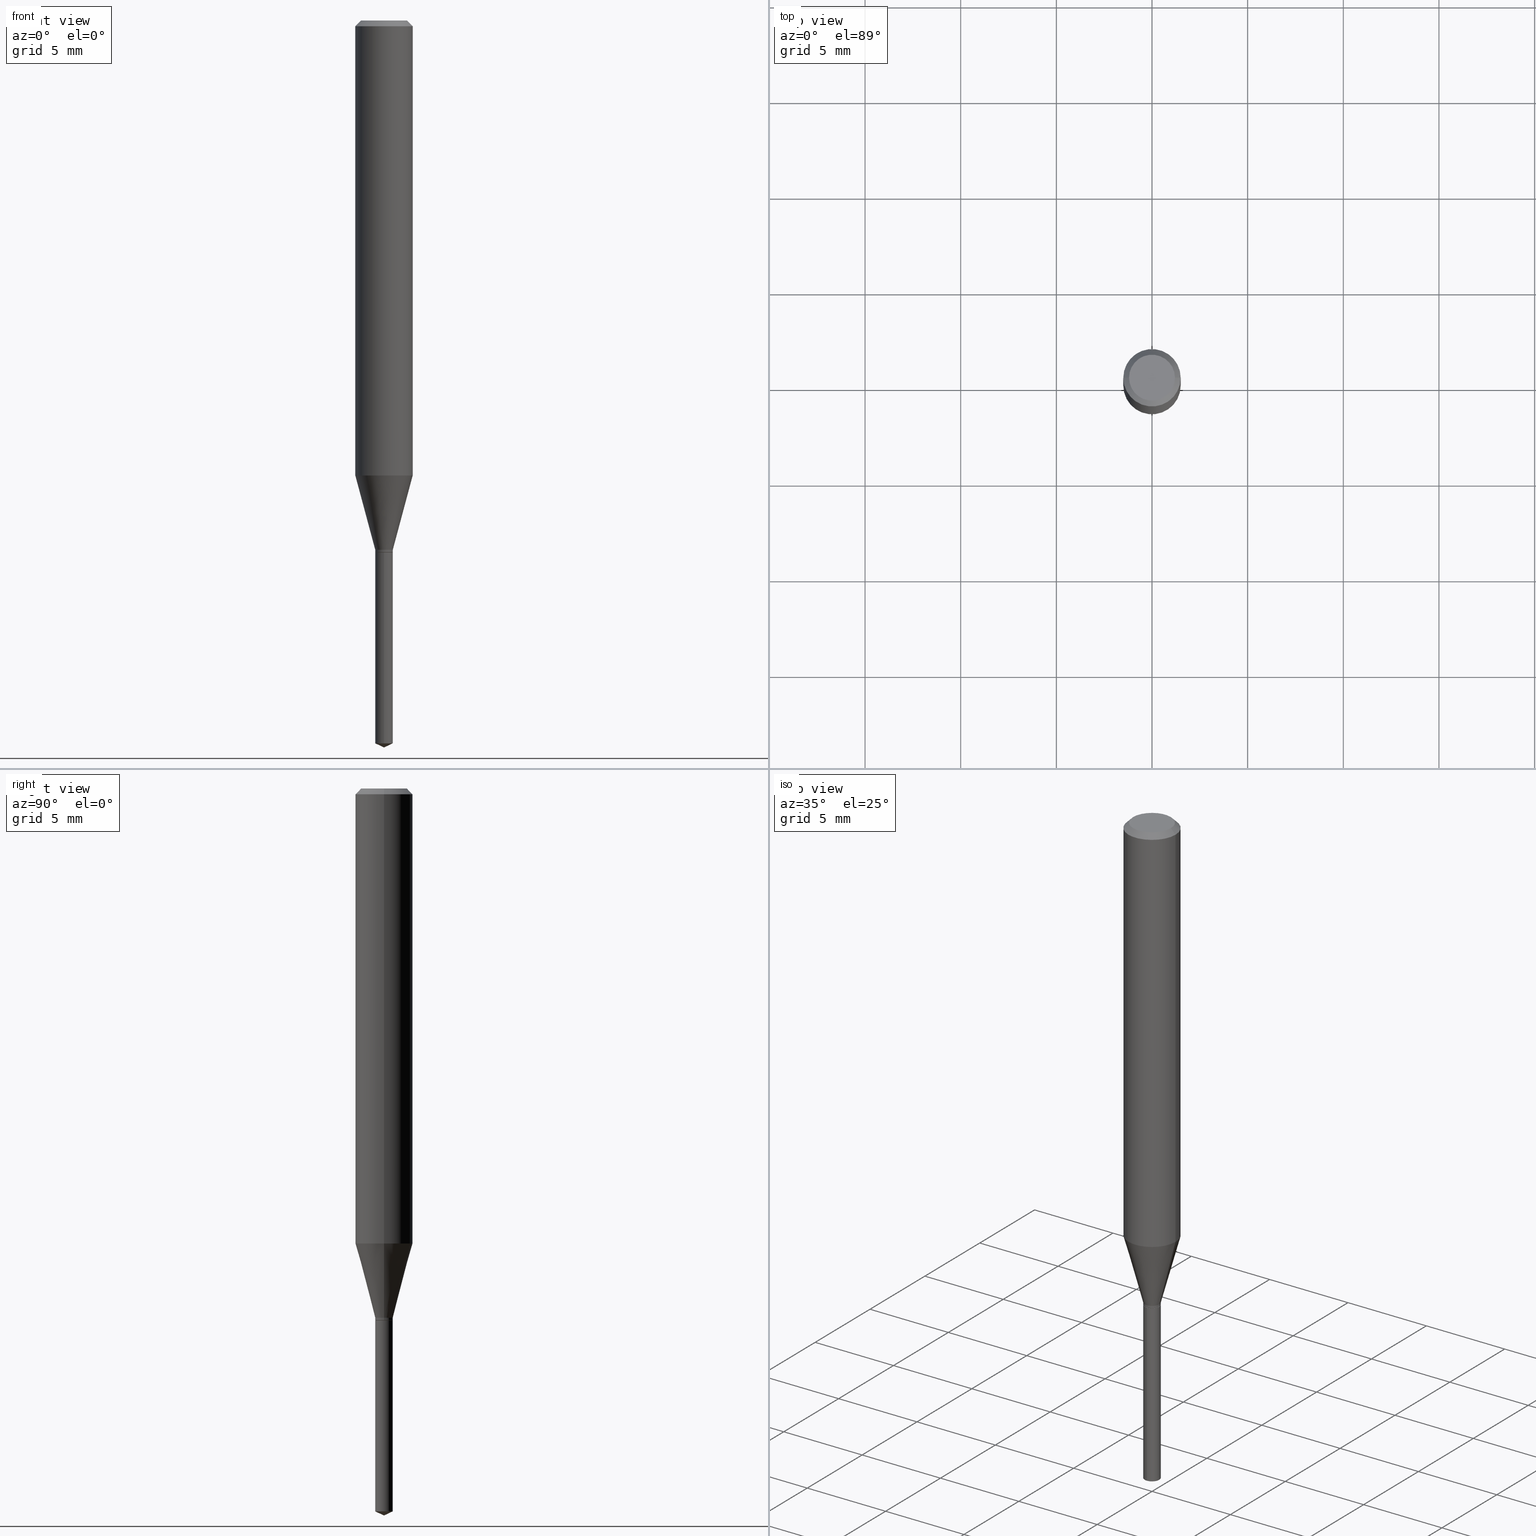
[diagram: canonical four-view strip — front | top / right | iso, engineering-drawing reading convention]
A machine part, canonical four-view strip (front | top / right | iso — engineering-drawing reading convention). The complete STEP part file that produces these views, byte-faithful:
ISO-10303-21;
HEADER;
FILE_DESCRIPTION (( 'STEP AP203' ),
    '1' );
FILE_NAME ('07815.STEP',
    '2024-04-24T03:39:00',
    ( '' ),
    ( '' ),
    'SwSTEP 2.0',
    'SolidWorks 2023',
    '' );
FILE_SCHEMA (( 'CONFIG_CONTROL_DESIGN' ));
ENDSEC;

DATA;
#1 = CARTESIAN_POINT ( 'NONE',  ( -0.05904999999999999832, 3.711095515056362547E-16, -0.01181000000000006871 ) ) ;
#2 = PERSON_AND_ORGANIZATION_ROLE ( 'design_owner' ) ;
#3 = CARTESIAN_POINT ( 'NONE',  ( 3.638026265593577860E-29, -5.194135746875548757E-15, -1.487659831387394549 ) ) ;
#4 = VERTEX_POINT ( 'NONE', #336 ) ;
#5 = EDGE_CURVE ( 'NONE', #411, #248, #164, .T. ) ;
#6 = DIRECTION ( 'NONE',  ( -2.445468806185136877E-29, 3.491481338843145188E-15, 1.000000000000000000 ) ) ;
#7 = ORIENTED_EDGE ( 'NONE', *, *, #348, .T. ) ;
#8 = DIRECTION ( 'NONE',  ( 1.000000000000000000, -6.982962677686260400E-15, 0.000000000000000000 ) ) ;
#9 = AXIS2_PLACEMENT_3D ( 'NONE', #363, #371, #310 ) ;
#10 = FACE_OUTER_BOUND ( 'NONE', #331, .T. ) ;
#11 = AXIS2_PLACEMENT_3D ( 'NONE', #195, #58, #12 ) ;
#12 = DIRECTION ( 'NONE',  ( 1.000000000000000000, -6.982962677686262766E-15, 0.000000000000000000 ) ) ;
#13 = APPROVAL_STATUS ( 'not_yet_approved' ) ;
#14 = CARTESIAN_POINT ( 'NONE',  ( 0.01810000000000000150, -3.928963950600190549E-15, -1.089099999999999957 ) ) ;
#15 = EDGE_CURVE ( 'NONE', #471, #475, #454, .T. ) ;
#16 = EDGE_LOOP ( 'NONE', ( #146, #114, #415, #186 ) ) ;
#17 = EDGE_CURVE ( 'NONE', #411, #427, #122, .T. ) ;
#18 = CLOSED_SHELL ( 'NONE', ( #126, #354, #343, #442, #289, #473, #72, #237, #296, #46, #91, #135 ) ) ;
#19 = PRODUCT_DEFINITION_FORMATION_WITH_SPECIFIED_SOURCE ( 'ANY', '', #76, .NOT_KNOWN. ) ;
#20 = EDGE_LOOP ( 'NONE', ( #378, #226, #169, #487 ) ) ;
#21 = LINE ( 'NONE', #191, #465 ) ;
#22 = DIRECTION ( 'NONE',  ( -2.445468806185136597E-29, 3.491481338843145583E-15, 1.000000000000000000 ) ) ;
#23 = FACE_OUTER_BOUND ( 'NONE', #205, .T. ) ;
#24 = FACE_OUTER_BOUND ( 'NONE', #375, .T. ) ;
#25 = VECTOR ( 'NONE', #192, 39.37007874015748854 ) ;
#26 = AXIS2_PLACEMENT_3D ( 'NONE', #85, #284, #365 ) ;
#27 = CARTESIAN_POINT ( 'NONE',  ( -1.263916244660946470E-16, -0.01810000000000382483, -1.094499999999999806 ) ) ;
#28 = FACE_OUTER_BOUND ( 'NONE', #406, .T. ) ;
#29 = LINE ( 'NONE', #321, #217 ) ;
#30 = DIRECTION ( 'NONE',  ( -6.982962677686267499E-15, -1.000000000000000000, 3.520397390770428626E-15 ) ) ;
#31 = EDGE_CURVE ( 'NONE', #82, #45, #90, .T. ) ;
#32 = DIRECTION ( 'NONE',  ( 1.000000000000000000, -6.982962677686266711E-15, 0.000000000000000000 ) ) ;
#33 = DIRECTION ( 'NONE',  ( 1.000000000000000000, -6.982962677686266711E-15, 4.876176775795935793E-29 ) ) ;
#34 = DIRECTION ( 'NONE',  ( 1.000000000000000000, -6.982962677686260400E-15, 0.000000000000000000 ) ) ;
#35 = VECTOR ( 'NONE', #279, 39.37007874015748143 ) ;
#36 = CC_DESIGN_DATE_AND_TIME_ASSIGNMENT ( #80, #373, ( #161 ) ) ;
#37 = DIRECTION ( 'NONE',  ( 1.000000000000000000, -6.982962677686265922E-15, 4.876176775795935793E-29 ) ) ;
#38 = DIRECTION ( 'NONE',  ( -2.445468806185136597E-29, 3.491481338843145583E-15, 1.000000000000000000 ) ) ;
#39 = DIRECTION ( 'NONE',  ( 1.000000000000000000, 0.000000000000000000, 0.000000000000000000 ) ) ;
#40 = VERTEX_POINT ( 'NONE', #342 ) ;
#41 = EDGE_CURVE ( 'NONE', #82, #462, #49, .T. ) ;
#42 = PERSON_AND_ORGANIZATION ( #278, #446 ) ;
#43 = VERTEX_POINT ( 'NONE', #387 ) ;
#44 = CARTESIAN_POINT ( 'NONE',  ( 0.000000000000000000, 0.000000000000000000, 0.000000000000000000 ) ) ;
#45 = VERTEX_POINT ( 'NONE', #53 ) ;
#46 = ADVANCED_FACE ( 'NONE', ( #10 ), #426, .F. ) ;
#47 = ORIENTED_EDGE ( 'NONE', *, *, #400, .T. ) ;
#48 = ORIENTED_EDGE ( 'NONE', *, *, #198, .T. ) ;
#49 = CIRCLE ( 'NONE', #87, 0.04724000000000000421 ) ;
#50 = AXIS2_PLACEMENT_3D ( 'NONE', #345, #338, #390 ) ;
#51 = ORIENTED_EDGE ( 'NONE', *, *, #225, .F. ) ;
#52 = APPROVAL_ROLE ( '' ) ;
#53 = CARTESIAN_POINT ( 'NONE',  ( 0.05904999999999999832, -4.535783407291118600E-16, -0.01181000000000006871 ) ) ;
#54 = LINE ( 'NONE', #218, #25 ) ;
#55 = ADVANCED_FACE ( 'NONE', ( #364 ), #239, .T. ) ;
#56 = CONICAL_SURFACE ( 'NONE', #165, 0.05904999999999999832, 0.7853981633974452814 ) ;
#57 = ORIENTED_EDGE ( 'NONE', *, *, #302, .F. ) ;
#58 = DIRECTION ( 'NONE',  ( -2.445468806185136597E-29, 3.491481338843145583E-15, 1.000000000000000000 ) ) ;
#59 = DIRECTION ( 'NONE',  ( 1.000000000000000000, -6.982962677686266711E-15, 4.876176775795935793E-29 ) ) ;
#60 = AXIS2_PLACEMENT_3D ( 'NONE', #320, #461, #34 ) ;
#61 = SECURITY_CLASSIFICATION ( '', '', #136 ) ;
#62 = CYLINDRICAL_SURFACE ( 'NONE', #232, 0.01810000000000000150 ) ;
#63 = ADVANCED_FACE ( 'NONE', ( #408 ), #488, .T. ) ;
#64 = APPROVAL_ROLE ( '' ) ;
#65 = CARTESIAN_POINT ( 'NONE',  ( 0.000000000000000000, 0.000000000000000000, 0.000000000000000000 ) ) ;
#66 = EDGE_CURVE ( 'NONE', #254, #451, #227, .T. ) ;
#67 = LINE ( 'NONE', #173, #423 ) ;
#68 = AXIS2_PLACEMENT_3D ( 'NONE', #399, #166, #269 ) ;
#69 = CARTESIAN_POINT ( 'NONE',  ( -9.261968845786000133E-28, 1.322362114038720264E-13, 37.87397874015748300 ) ) ;
#70 = EDGE_CURVE ( 'NONE', #43, #4, #379, .T. ) ;
#71 = CC_DESIGN_DATE_AND_TIME_ASSIGNMENT ( #440, #306, ( #61 ) ) ;
#72 = ADVANCED_FACE ( 'NONE', ( #276 ), #236, .T. ) ;
#73 = DIRECTION ( 'NONE',  ( -2.438088387897960049E-29, 3.491481338843145188E-15, 1.000000000000000000 ) ) ;
#74 = CARTESIAN_POINT ( 'NONE',  ( 0.000000000000000000, 0.000000000000000000, 0.000000000000000000 ) ) ;
#75 = DIRECTION ( 'NONE',  ( -6.982962677686265922E-15, -1.000000000000000000, 0.000000000000000000 ) ) ;
#76 = PRODUCT ( '07815', '07815', '', ( #86 ) ) ;
#77 = LOCAL_TIME ( 23, 39, 0.000000000000000000, #358 ) ;
#78 = DIRECTION ( 'NONE',  ( -2.445468806185136597E-29, 3.491481338843145583E-15, 1.000000000000000000 ) ) ;
#79 = CARTESIAN_POINT ( 'NONE',  ( 2.663360076816232005E-29, -3.802572326134069746E-15, -1.089099999999999957 ) ) ;
#80 = DATE_AND_TIME ( #325, #439 ) ;
#81 = ORIENTED_EDGE ( 'NONE', *, *, #453, .F. ) ;
#82 = VERTEX_POINT ( 'NONE', #243 ) ;
#83 = APPROVAL ( #140, 'UNSPECIFIED' ) ;
#84 = ORIENTED_EDGE ( 'NONE', *, *, #208, .T. ) ;
#85 = CARTESIAN_POINT ( 'NONE',  ( -9.261968845786000133E-28, 1.322362114038720264E-13, 37.87397874015748300 ) ) ;
#86 = MECHANICAL_CONTEXT ( 'NONE', #355, 'mechanical' ) ;
#87 = AXIS2_PLACEMENT_3D ( 'NONE', #159, #301, #478 ) ;
#88 = AXIS2_PLACEMENT_3D ( 'NONE', #181, #145, #455 ) ;
#89 = CARTESIAN_POINT ( 'NONE',  ( 2.675342873966538993E-29, -3.819680584694400481E-15, -1.093999999999999861 ) ) ;
#90 = LINE ( 'NONE', #367, #265 ) ;
#91 = ADVANCED_FACE ( 'NONE', ( #368 ), #403, .F. ) ;
#92 = APPROVAL_DATE_TIME ( #201, #167 ) ;
#93 = DIRECTION ( 'NONE',  ( -6.982962677686265922E-15, -1.000000000000000000, 0.000000000000000000 ) ) ;
#94 = CIRCLE ( 'NONE', #50, 0.05904999999999999832 ) ;
#95 = ORIENTED_EDGE ( 'NONE', *, *, #291, .F. ) ;
#96 = DIRECTION ( 'NONE',  ( -2.445468806185136597E-29, 3.491481338843145583E-15, 1.000000000000000000 ) ) ;
#97 = FACE_OUTER_BOUND ( 'NONE', #123, .T. ) ;
#98 = ORIENTED_EDGE ( 'NONE', *, *, #196, .T. ) ;
#99 = DIRECTION ( 'NONE',  ( -0.7071067811865218156, 7.493145998870261075E-15, 0.7071067811865732189 ) ) ;
#100 = ORIENTED_EDGE ( 'NONE', *, *, #241, .F. ) ;
#101 = DIRECTION ( 'NONE',  ( 1.000000000000000000, -6.982962677686266711E-15, 4.876176775795935793E-29 ) ) ;
#102 =( GEOMETRIC_REPRESENTATION_CONTEXT ( 3 ) GLOBAL_UNCERTAINTY_ASSIGNED_CONTEXT ( ( #247 ) ) GLOBAL_UNIT_ASSIGNED_CONTEXT ( ( #328, #414, #118 ) ) REPRESENTATION_CONTEXT ( 'NONE', 'WORKASPACE' ) );
#103 = CARTESIAN_POINT ( 'NONE',  ( 2.676565608369631794E-29, -3.821426325363822773E-15, -1.094499999999999806 ) ) ;
#104 = CC_DESIGN_PERSON_AND_ORGANIZATION_ASSIGNMENT ( #382, #340, ( #19 ) ) ;
#105 = CARTESIAN_POINT ( 'NONE',  ( 2.289625240354564916E-29, -3.268978029661690375E-15, -0.9362725194300541842 ) ) ;
#106 = CARTESIAN_POINT ( 'NONE',  ( -1.263916244660850081E-16, -0.01810000000000519180, -1.487659831387394549 ) ) ;
#107 = CONICAL_SURFACE ( 'NONE', #26, 84.42940631927494621, 1.134464013796318671 ) ;
#108 = DIRECTION ( 'NONE',  ( 1.000000000000000000, -6.982962677686262766E-15, 0.000000000000000000 ) ) ;
#109 = ORIENTED_EDGE ( 'NONE', *, *, #17, .T. ) ;
#110 = CARTESIAN_POINT ( 'NONE',  ( 2.676565608369631794E-29, -3.821426325363822773E-15, -1.094499999999999806 ) ) ;
#111 = DIRECTION ( 'NONE',  ( -0.2588190451025211281, 5.211531920934547886E-15, 0.9659258262890679791 ) ) ;
#112 = COORDINATED_UNIVERSAL_TIME_OFFSET ( 5, 0, .BEHIND. ) ;
#113 = ORIENTED_EDGE ( 'NONE', *, *, #266, .T. ) ;
#114 = ORIENTED_EDGE ( 'NONE', *, *, #222, .T. ) ;
#115 = AXIS2_PLACEMENT_3D ( 'NONE', #401, #73, #37 ) ;
#116 = CIRCLE ( 'NONE', #134, 0.01760000000000000106 ) ;
#117 = CARTESIAN_POINT ( 'NONE',  ( -0.01810000000000000150, -3.682518220241656550E-15, -1.089099999999999957 ) ) ;
#118 =( NAMED_UNIT ( * ) SI_UNIT ( $, .STERADIAN. ) SOLID_ANGLE_UNIT ( ) );
#119 = ORIENTED_EDGE ( 'NONE', *, *, #430, .T. ) ;
#120 = ORIENTED_EDGE ( 'NONE', *, *, #397, .F. ) ;
#121 = APPLICATION_PROTOCOL_DEFINITION ( 'international standard', 'config_control_design', 1994, #385 ) ;
#122 = LINE ( 'NONE', #256, #187 ) ;
#123 = EDGE_LOOP ( 'NONE', ( #374, #109, #458, #100 ) ) ;
#124 = CIRCLE ( 'NONE', #394, 0.01810000000000000150 ) ;
#125 = APPROVAL_PERSON_ORGANIZATION ( #485, #83, #213 ) ;
#126 = ADVANCED_FACE ( 'NONE', ( #28 ), #351, .T. ) ;
#127 = DIRECTION ( 'NONE',  ( -2.445468806185136597E-29, 3.491481338843145583E-15, 1.000000000000000000 ) ) ;
#128 = DIRECTION ( 'NONE',  ( -2.445470214571802116E-29, 3.491479321953280158E-15, 1.000000000000000000 ) ) ;
#129 = EDGE_LOOP ( 'NONE', ( #443, #84, #190 ) ) ;
#130 = APPROVAL_STATUS ( 'not_yet_approved' ) ;
#131 = CARTESIAN_POINT ( 'NONE',  ( 2.676565608369631794E-29, -3.821426325363822773E-15, -1.094499999999999806 ) ) ;
#132 = COORDINATED_UNIVERSAL_TIME_OFFSET ( 5, 0, .BEHIND. ) ;
#133 = LINE ( 'NONE', #480, #352 ) ;
#134 = AXIS2_PLACEMENT_3D ( 'NONE', #255, #341, #8 ) ;
#135 = ADVANCED_FACE ( 'NONE', ( #307 ), #438, .T. ) ;
#136 = SECURITY_CLASSIFICATION_LEVEL ( 'unclassified' ) ;
#137 = AXIS2_PLACEMENT_3D ( 'NONE', #316, #96, #204 ) ;
#138 = CARTESIAN_POINT ( 'NONE',  ( 2.676565608369631794E-29, -3.821426325363822773E-15, -1.094499999999999806 ) ) ;
#139 = CIRCLE ( 'NONE', #410, 0.01810000000000000150 ) ;
#140 = APPROVAL_STATUS ( 'not_yet_approved' ) ;
#141 = ORIENTED_EDGE ( 'NONE', *, *, #302, .T. ) ;
#142 = PERSON_AND_ORGANIZATION ( #278, #446 ) ;
#143 = DESIGN_CONTEXT ( 'detailed design', #385, 'design' ) ;
#144 = ORIENTED_EDGE ( 'NONE', *, *, #453, .T. ) ;
#145 = DIRECTION ( 'NONE',  ( 2.445468806185136597E-29, -3.491481338843145583E-15, -1.000000000000000000 ) ) ;
#146 = ORIENTED_EDGE ( 'NONE', *, *, #253, .T. ) ;
#147 = CIRCLE ( 'NONE', #11, 0.01810000000000000150 ) ;
#148 = VERTEX_POINT ( 'NONE', #482 ) ;
#149 = CARTESIAN_POINT ( 'NONE',  ( 3.638026265593577860E-29, -5.194135746875548757E-15, -1.487659831387394549 ) ) ;
#150 = DIRECTION ( 'NONE',  ( -2.445470214571802116E-29, 3.491479321953280158E-15, 1.000000000000000000 ) ) ;
#151 = FACE_OUTER_BOUND ( 'NONE', #223, .T. ) ;
#152 = CC_DESIGN_PERSON_AND_ORGANIZATION_ASSIGNMENT ( #274, #398, ( #61 ) ) ;
#153 = EDGE_CURVE ( 'NONE', #475, #4, #29, .T. ) ;
#154 = CALENDAR_DATE ( 2024, 23, 4 ) ;
#155 = CC_DESIGN_APPROVAL ( #83, ( #161 ) ) ;
#156 = DIRECTION ( 'NONE',  ( -1.000000000000000000, 6.982962677686266711E-15, 0.000000000000000000 ) ) ;
#157 = CARTESIAN_POINT ( 'NONE',  ( 2.289625240354564916E-29, -3.268978029661690375E-15, -0.9362725194300541842 ) ) ;
#158 = FACE_OUTER_BOUND ( 'NONE', #16, .T. ) ;
#159 = CARTESIAN_POINT ( 'NONE',  ( 8.265746106709734507E-48, -1.180129479067563789E-33, -3.380025165646692144E-19 ) ) ;
#160 = CARTESIAN_POINT ( 'NONE',  ( -0.05905000000000011628, -2.849402544195350882E-15, -0.9362725194300541842 ) ) ;
#161 = PRODUCT_DEFINITION ( 'UNKNOWN', '', #19, #143 ) ;
#162 = CARTESIAN_POINT ( 'NONE',  ( 0.000000000000000000, 0.000000000000000000, 0.000000000000000000 ) ) ;
#163 = ORIENTED_EDGE ( 'NONE', *, *, #348, .F. ) ;
#164 = CIRCLE ( 'NONE', #445, 0.01810000000000000150 ) ;
#165 = AXIS2_PLACEMENT_3D ( 'NONE', #260, #268, #156 ) ;
#166 = DIRECTION ( 'NONE',  ( -2.445468806185136597E-29, 3.491481338843145583E-15, 1.000000000000000000 ) ) ;
#167 = APPROVAL ( #13, 'UNSPECIFIED' ) ;
#168 = CARTESIAN_POINT ( 'NONE',  ( -0.01760000000000000106, -3.693721576695933513E-15, -1.094499999999999806 ) ) ;
#169 = ORIENTED_EDGE ( 'NONE', *, *, #153, .T. ) ;
#170 = PLANE ( 'NONE',  #206 ) ;
#171 = DIRECTION ( 'NONE',  ( -2.445470214571802396E-29, 3.491479321953280158E-15, 1.000000000000000000 ) ) ;
#172 = CALENDAR_DATE ( 2024, 23, 4 ) ;
#173 = CARTESIAN_POINT ( 'NONE',  ( 0.05905000000000006077, -4.123439461173744764E-16, 2.879382386107503023E-30 ) ) ;
#174 = ADVANCED_FACE ( 'NONE', ( #24 ), #170, .F. ) ;
#175 = CARTESIAN_POINT ( 'NONE',  ( 2.675342873966538993E-29, -3.819680584694400481E-15, -1.093999999999999861 ) ) ;
#176 = AXIS2_PLACEMENT_3D ( 'NONE', #69, #361, #30 ) ;
#177 = DIRECTION ( 'NONE',  ( 1.000000000000000000, -6.982962677686260400E-15, 0.000000000000000000 ) ) ;
#178 = CONICAL_SURFACE ( 'NONE', #88, 0.05904999999999999832, 0.7853981633974452814 ) ;
#179 = DIRECTION ( 'NONE',  ( 1.000000000000000000, -6.982962677686262766E-15, 0.000000000000000000 ) ) ;
#180 = APPLICATION_PROTOCOL_DEFINITION ( 'international standard', 'config_control_design', 1994, #355 ) ;
#181 = CARTESIAN_POINT ( 'NONE',  ( 2.888098660104663328E-31, -4.123439461173779030E-17, -0.01181000000000006871 ) ) ;
#182 = ORIENTED_EDGE ( 'NONE', *, *, #407, .T. ) ;
#183 = CC_DESIGN_PERSON_AND_ORGANIZATION_ASSIGNMENT ( #142, #285, ( #161 ) ) ;
#184 = LENGTH_MEASURE_WITH_UNIT ( LENGTH_MEASURE( 0.02539999999999999897 ), #283 );
#185 = ORIENTED_EDGE ( 'NONE', *, *, #209, .T. ) ;
#186 = ORIENTED_EDGE ( 'NONE', *, *, #431, .F. ) ;
#187 = VECTOR ( 'NONE', #422, 39.37007874015748143 ) ;
#188 = ORIENTED_EDGE ( 'NONE', *, *, #416, .F. ) ;
#189 = CIRCLE ( 'NONE', #477, 0.05905000000000011628 ) ;
#190 = ORIENTED_EDGE ( 'NONE', *, *, #5, .F. ) ;
#191 = CARTESIAN_POINT ( 'NONE',  ( -0.05905000000000006077, 4.195754854663395916E-16, -2.904631170795524694E-30 ) ) ;
#192 = DIRECTION ( 'NONE',  ( 6.439704144417038242E-15, 0.9063077870366533784, 0.4226182617406922803 ) ) ;
#193 = DIRECTION ( 'NONE',  ( -6.982962677686265922E-15, -1.000000000000000000, 0.000000000000000000 ) ) ;
#194 = CIRCLE ( 'NONE', #466, 0.04724000000000000421 ) ;
#195 = CARTESIAN_POINT ( 'NONE',  ( 2.663360076816232005E-29, -3.802572326134069746E-15, -1.089099999999999957 ) ) ;
#196 = EDGE_CURVE ( 'NONE', #40, #411, #54, .T. ) ;
#197 = CARTESIAN_POINT ( 'NONE',  ( 4.132873053354867254E-48, -5.900647395337818946E-34, -1.690012582823346072E-19 ) ) ;
#198 = EDGE_CURVE ( 'NONE', #43, #299, #339, .T. ) ;
#199 = LINE ( 'NONE', #14, #318 ) ;
#200 = CARTESIAN_POINT ( 'NONE',  ( 2.888098660104663328E-31, -4.123439461173779030E-17, -0.01181000000000006871 ) ) ;
#201 = DATE_AND_TIME ( #154, #258 ) ;
#202 = LINE ( 'NONE', #472, #35 ) ;
#203 = ADVANCED_BREP_SHAPE_REPRESENTATION ( '07815', ( #381, #362, #360 ), #102 ) ;
#204 = DIRECTION ( 'NONE',  ( 1.000000000000000000, -6.982962677686260400E-15, 0.000000000000000000 ) ) ;
#205 = EDGE_LOOP ( 'NONE', ( #330, #287, #450, #95 ) ) ;
#206 = AXIS2_PLACEMENT_3D ( 'NONE', #314, #479, #337 ) ;
#207 = CIRCLE ( 'NONE', #249, 0.05904999999999999832 ) ;
#208 = EDGE_CURVE ( 'NONE', #40, #248, #467, .T. ) ;
#209 = EDGE_CURVE ( 'NONE', #148, #451, #199, .T. ) ;
#210 = AXIS2_PLACEMENT_3D ( 'NONE', #149, #460, #193 ) ;
#211 = DIRECTION ( 'NONE',  ( -2.445470214571802116E-29, 3.491479321953280158E-15, 1.000000000000000000 ) ) ;
#212 = DIRECTION ( 'NONE',  ( -1.000000000000000000, 6.982962677686265922E-15, -4.876176775795935793E-29 ) ) ;
#213 = APPROVAL_ROLE ( '' ) ;
#214 = EDGE_CURVE ( 'NONE', #418, #427, #124, .T. ) ;
#215 = FACE_OUTER_BOUND ( 'NONE', #252, .T. ) ;
#216 = ORIENTED_EDGE ( 'NONE', *, *, #222, .F. ) ;
#217 = VECTOR ( 'NONE', #356, 39.37007874015748143 ) ;
#218 = CARTESIAN_POINT ( 'NONE',  ( 3.658668015054778287E-29, -5.223602213574301462E-15, -1.496099999999999985 ) ) ;
#219 = CC_DESIGN_APPROVAL ( #167, ( #19 ) ) ;
#220 = EDGE_LOOP ( 'NONE', ( #392, #81, #141, #7 ) ) ;
#221 = EDGE_LOOP ( 'NONE', ( #224, #425, #185, #429 ) ) ;
#222 = EDGE_CURVE ( 'NONE', #254, #305, #21, .T. ) ;
#223 = EDGE_LOOP ( 'NONE', ( #435, #413, #333, #57 ) ) ;
#224 = ORIENTED_EDGE ( 'NONE', *, *, #266, .F. ) ;
#225 = EDGE_CURVE ( 'NONE', #4, #148, #202, .T. ) ;
#226 = ORIENTED_EDGE ( 'NONE', *, *, #15, .T. ) ;
#227 = CIRCLE ( 'NONE', #476, 0.05905000000000011628 ) ;
#228 = LOCAL_TIME ( 23, 39, 0.000000000000000000, #366 ) ;
#229 = DIRECTION ( 'NONE',  ( -6.982962677686265922E-15, -1.000000000000000000, 0.000000000000000000 ) ) ;
#230 = CARTESIAN_POINT ( 'NONE',  ( -1.263916244660946470E-16, -0.01810000000000382483, -1.094499999999999806 ) ) ;
#231 = AXIS2_PLACEMENT_3D ( 'NONE', #138, #282, #177 ) ;
#232 = AXIS2_PLACEMENT_3D ( 'NONE', #103, #128, #391 ) ;
#233 = CC_DESIGN_APPROVAL ( #298, ( #61 ) ) ;
#234 = CARTESIAN_POINT ( 'NONE',  ( -0.04724000000000000421, 3.504923541997677355E-16, -3.380025165670481712E-19 ) ) ;
#235 = SHAPE_DEFINITION_REPRESENTATION ( #424, #203 ) ;
#236 = CONICAL_SURFACE ( 'NONE', #297, 0.01810000000000000150, 0.2617993877991498519 ) ;
#237 = ADVANCED_FACE ( 'NONE', ( #215 ), #242, .T. ) ;
#238 = DIRECTION ( 'NONE',  ( -2.445468806185136597E-29, 3.491481338843145583E-15, 1.000000000000000000 ) ) ;
#239 = CONICAL_SURFACE ( 'NONE', #176, 84.42940631927494621, 1.134464013796318671 ) ;
#240 = CIRCLE ( 'NONE', #210, 0.01810000000000000150 ) ;
#241 = EDGE_CURVE ( 'NONE', #248, #418, #357, .T. ) ;
#242 = CYLINDRICAL_SURFACE ( 'NONE', #9, 0.05905000000000006077 ) ;
#243 = CARTESIAN_POINT ( 'NONE',  ( 0.04724000000000000421, -3.852183633974369345E-16, -3.380025165621689721E-19 ) ) ;
#244 = FACE_OUTER_BOUND ( 'NONE', #350, .T. ) ;
#245 = ORIENTED_EDGE ( 'NONE', *, *, #241, .T. ) ;
#246 = CARTESIAN_POINT ( 'NONE',  ( 3.658664905062460986E-29, -5.223606628546217219E-15, -1.496099999999999985 ) ) ;
#247 = UNCERTAINTY_MEASURE_WITH_UNIT (LENGTH_MEASURE( 1.000000000000000082E-05 ), #328, 'distance_accuracy_value', 'NONE');
#248 = VERTEX_POINT ( 'NONE', #106 ) ;
#249 = AXIS2_PLACEMENT_3D ( 'NONE', #200, #262, #294 ) ;
#250 = ORIENTED_EDGE ( 'NONE', *, *, #17, .F. ) ;
#251 = ADVANCED_FACE ( 'NONE', ( #97 ), #62, .T. ) ;
#252 = EDGE_LOOP ( 'NONE', ( #216, #404, #441, #163 ) ) ;
#253 = EDGE_CURVE ( 'NONE', #451, #254, #189, .T. ) ;
#254 = VERTEX_POINT ( 'NONE', #160 ) ;
#255 = CARTESIAN_POINT ( 'NONE',  ( 2.676565608369631794E-29, -3.821426325363822773E-15, -1.094499999999999806 ) ) ;
#256 = CARTESIAN_POINT ( 'NONE',  ( 1.286082351726048916E-16, 0.01809999999999617817, -1.094499999999999806 ) ) ;
#257 = VECTOR ( 'NONE', #405, 39.37007874015748143 ) ;
#258 = LOCAL_TIME ( 23, 39, 0.000000000000000000, #263 ) ;
#259 = EDGE_LOOP ( 'NONE', ( #452, #490 ) ) ;
#260 = CARTESIAN_POINT ( 'NONE',  ( 2.888098660104663328E-31, -4.123439461173779030E-17, -0.01181000000000006871 ) ) ;
#261 = CARTESIAN_POINT ( 'NONE',  ( 1.286082351726144812E-16, 0.01809999999999480080, -1.487659831387394549 ) ) ;
#262 = DIRECTION ( 'NONE',  ( -2.445468806185136597E-29, 3.491481338843145583E-15, 1.000000000000000000 ) ) ;
#263 = COORDINATED_UNIVERSAL_TIME_OFFSET ( 5, 0, .BEHIND. ) ;
#264 = LINE ( 'NONE', #347, #380 ) ;
#265 = VECTOR ( 'NONE', #311, 39.37007874015748143 ) ;
#266 = EDGE_CURVE ( 'NONE', #299, #254, #264, .T. ) ;
#267 = CONICAL_SURFACE ( 'NONE', #68, 0.01810000000000000150, 0.2617993877991498519 ) ;
#268 = DIRECTION ( 'NONE',  ( 2.445468806185136597E-29, -3.491481338843145583E-15, -1.000000000000000000 ) ) ;
#269 = DIRECTION ( 'NONE',  ( 1.000000000000000000, -6.982962677686262766E-15, 0.000000000000000000 ) ) ;
#270 = APPROVAL_DATE_TIME ( #353, #298 ) ;
#271 = DIRECTION ( 'NONE',  ( -2.445470214571802116E-29, 3.491479321953280158E-15, 1.000000000000000000 ) ) ;
#272 = APPROVAL_PERSON_ORGANIZATION ( #393, #298, #64 ) ;
#273 = DIRECTION ( 'NONE',  ( -2.445468806185136597E-29, 3.491481338843145583E-15, 1.000000000000000000 ) ) ;
#274 = PERSON_AND_ORGANIZATION ( #278, #446 ) ;
#275 = CARTESIAN_POINT ( 'NONE',  ( 0.05905000000000011628, -3.681321975779065690E-15, -0.9362725194300541842 ) ) ;
#276 = FACE_OUTER_BOUND ( 'NONE', #221, .T. ) ;
#277 = DIRECTION ( 'NONE',  ( 1.000000000000000000, -6.982962677686266711E-15, 4.876185090822587894E-29 ) ) ;
#278 = PERSON ( 'UNSPECIFIED', 'UNSPECIFIED', 'UNSPECIFIED', ('UNSPECIFIED'), ('UNSPECIFIED'), ('UNSPECIFIED') ) ;
#279 = DIRECTION ( 'NONE',  ( -2.445468806185136877E-29, 3.491481338843145188E-15, 1.000000000000000000 ) ) ;
#280 = ADVANCED_FACE ( 'NONE', ( #334 ), #107, .T. ) ;
#281 = AXIS2_PLACEMENT_3D ( 'NONE', #175, #372, #324 ) ;
#282 = DIRECTION ( 'NONE',  ( -2.445468806185136597E-29, 3.491481338843145583E-15, 1.000000000000000000 ) ) ;
#283 =( LENGTH_UNIT ( ) NAMED_UNIT ( * ) SI_UNIT ( $, .METRE. ) );
#284 = DIRECTION ( 'NONE',  ( -2.445470214571802116E-29, 3.491479321953280158E-15, 1.000000000000000000 ) ) ;
#285 = PERSON_AND_ORGANIZATION_ROLE ( 'creator' ) ;
#286 = ORIENTED_EDGE ( 'NONE', *, *, #5, .T. ) ;
#287 = ORIENTED_EDGE ( 'NONE', *, *, #70, .T. ) ;
#288 = VECTOR ( 'NONE', #303, 39.37007874015748143 ) ;
#289 = ADVANCED_FACE ( 'NONE', ( #244 ), #409, .T. ) ;
#290 = CC_DESIGN_SECURITY_CLASSIFICATION ( #61, ( #19 ) ) ;
#291 = EDGE_CURVE ( 'NONE', #299, #148, #139, .T. ) ;
#292 = DIRECTION ( 'NONE',  ( -2.445468806185136597E-29, 3.491481338843145583E-15, 1.000000000000000000 ) ) ;
#293 = ORIENTED_EDGE ( 'NONE', *, *, #407, .F. ) ;
#294 = DIRECTION ( 'NONE',  ( 1.000000000000000000, -6.982962677686266711E-15, 0.000000000000000000 ) ) ;
#295 = ORIENTED_EDGE ( 'NONE', *, *, #153, .F. ) ;
#296 = ADVANCED_FACE ( 'NONE', ( #322 ), #178, .T. ) ;
#297 = AXIS2_PLACEMENT_3D ( 'NONE', #317, #238, #108 ) ;
#298 = APPROVAL ( #130, 'UNSPECIFIED' ) ;
#299 = VERTEX_POINT ( 'NONE', #117 ) ;
#300 = DIRECTION ( 'NONE',  ( -2.445470214571802116E-29, 3.491479321953280158E-15, 1.000000000000000000 ) ) ;
#301 = DIRECTION ( 'NONE',  ( -2.445468806185136597E-29, 3.491481338843145583E-15, 1.000000000000000000 ) ) ;
#302 = EDGE_CURVE ( 'NONE', #462, #305, #463, .T. ) ;
#303 = DIRECTION ( 'NONE',  ( -0.7071067811865453523, 2.468850131082234184E-15, -0.7071067811865496822 ) ) ;
#304 = ORIENTED_EDGE ( 'NONE', *, *, #430, .F. ) ;
#305 = VERTEX_POINT ( 'NONE', #420 ) ;
#306 = DATE_TIME_ROLE ( 'classification_date' ) ;
#307 = FACE_OUTER_BOUND ( 'NONE', #20, .T. ) ;
#308 = CYLINDRICAL_SURFACE ( 'NONE', #402, 0.01810000000000000150 ) ;
#309 = CC_DESIGN_PERSON_AND_ORGANIZATION_ASSIGNMENT ( #335, #2, ( #76 ) ) ;
#310 = DIRECTION ( 'NONE',  ( 1.000000000000000000, -6.982962677686266711E-15, 4.876176775795935793E-29 ) ) ;
#311 = DIRECTION ( 'NONE',  ( 0.7071067811865453523, -7.319954787623248157E-15, -0.7071067811865496822 ) ) ;
#312 = CLOSED_SHELL ( 'NONE', ( #251, #55, #280, #63, #174 ) ) ;
#313 = AXIS2_PLACEMENT_3D ( 'NONE', #428, #300, #93 ) ;
#314 = CARTESIAN_POINT ( 'NONE',  ( 2.676565608369631794E-29, -3.821426325363822773E-15, -1.094499999999999806 ) ) ;
#315 = PRODUCT_RELATED_PRODUCT_CATEGORY ( 'detail', '', ( #76 ) ) ;
#316 = CARTESIAN_POINT ( 'NONE',  ( 2.676565608369631794E-29, -3.821426325363822773E-15, -1.094499999999999806 ) ) ;
#317 = CARTESIAN_POINT ( 'NONE',  ( 2.663360076816232005E-29, -3.802572326134069746E-15, -1.089099999999999957 ) ) ;
#318 = VECTOR ( 'NONE', #437, 39.37007874015748854 ) ;
#319 = LOCAL_TIME ( 23, 39, 0.000000000000000000, #132 ) ;
#320 = CARTESIAN_POINT ( 'NONE',  ( 2.676565608369631794E-29, -3.821426325363822773E-15, -1.094499999999999806 ) ) ;
#321 = CARTESIAN_POINT ( 'NONE',  ( 0.01760000000000000106, -3.944326468491100569E-15, -1.094499999999999806 ) ) ;
#322 = FACE_OUTER_BOUND ( 'NONE', #220, .T. ) ;
#323 = DATE_AND_TIME ( #449, #228 ) ;
#324 = DIRECTION ( 'NONE',  ( 1.000000000000000000, -6.982962677686262766E-15, 0.000000000000000000 ) ) ;
#325 = CALENDAR_DATE ( 2024, 23, 4 ) ;
#326 = EDGE_CURVE ( 'NONE', #45, #305, #207, .T. ) ;
#327 = EDGE_LOOP ( 'NONE', ( #119, #113, #459, #332 ) ) ;
#328 =( CONVERSION_BASED_UNIT ( 'INCH', #184 ) LENGTH_UNIT ( ) NAMED_UNIT ( #412 ) );
#329 = CARTESIAN_POINT ( 'NONE',  ( -0.01810000000000000150, 1.286082351725781443E-16, -8.903272513361380370E-31 ) ) ;
#330 = ORIENTED_EDGE ( 'NONE', *, *, #198, .F. ) ;
#331 = EDGE_LOOP ( 'NONE', ( #144, #370 ) ) ;
#332 = ORIENTED_EDGE ( 'NONE', *, *, #209, .F. ) ;
#333 = ORIENTED_EDGE ( 'NONE', *, *, #326, .T. ) ;
#334 = FACE_OUTER_BOUND ( 'NONE', #129, .T. ) ;
#335 = PERSON_AND_ORGANIZATION ( #278, #446 ) ;
#336 = CARTESIAN_POINT ( 'NONE',  ( 0.01810000000000000150, -3.946072209160522072E-15, -1.093999999999999861 ) ) ;
#337 = DIRECTION ( 'NONE',  ( 6.982962677686265922E-15, 1.000000000000000000, -3.491479321953280158E-15 ) ) ;
#338 = DIRECTION ( 'NONE',  ( -2.445468806185136597E-29, 3.491481338843145583E-15, 1.000000000000000000 ) ) ;
#339 = LINE ( 'NONE', #329, #483 ) ;
#340 = PERSON_AND_ORGANIZATION_ROLE ( 'design_supplier' ) ;
#341 = DIRECTION ( 'NONE',  ( -2.445468806185136597E-29, 3.491481338843145583E-15, 1.000000000000000000 ) ) ;
#342 = CARTESIAN_POINT ( 'NONE',  ( 3.658667988020872822E-29, -5.223602213574301462E-15, -1.496099999999999985 ) ) ;
#343 = ADVANCED_FACE ( 'NONE', ( #158 ), #469, .T. ) ;
#344 = DIRECTION ( 'NONE',  ( 2.438088387897960049E-29, -3.491481338843145188E-15, -1.000000000000000000 ) ) ;
#345 = CARTESIAN_POINT ( 'NONE',  ( 2.888098660104663328E-31, -4.123439461173779030E-17, -0.01181000000000006871 ) ) ;
#346 = PERSON_AND_ORGANIZATION ( #278, #446 ) ;
#347 = CARTESIAN_POINT ( 'NONE',  ( -0.01810000000000000150, -3.673964090961491577E-15, -1.089099999999999957 ) ) ;
#348 = EDGE_CURVE ( 'NONE', #305, #45, #94, .T. ) ;
#349 = FACE_OUTER_BOUND ( 'NONE', #327, .T. ) ;
#350 = EDGE_LOOP ( 'NONE', ( #182, #48, #304, #51 ) ) ;
#351 = CONICAL_SURFACE ( 'NONE', #137, 0.01760000000000000106, 0.7853981633974119747 ) ;
#352 = VECTOR ( 'NONE', #99, 39.37007874015748143 ) ;
#353 = DATE_AND_TIME ( #172, #77 ) ;
#354 = ADVANCED_FACE ( 'NONE', ( #151 ), #56, .T. ) ;
#355 = APPLICATION_CONTEXT ( 'configuration controlled 3d designs of mechanical parts and assemblies' ) ;
#356 = DIRECTION ( 'NONE',  ( 0.7071067811865218156, -2.468850131081987665E-15, 0.7071067811865732189 ) ) ;
#357 = LINE ( 'NONE', #27, #369 ) ;
#358 = COORDINATED_UNIVERSAL_TIME_OFFSET ( 5, 0, .BEHIND. ) ;
#359 = CARTESIAN_POINT ( 'NONE',  ( 8.265746106709734507E-48, -1.180129479067563789E-33, -3.380025165646692144E-19 ) ) ;
#360 = AXIS2_PLACEMENT_3D ( 'NONE', #44, #417, #39 ) ;
#361 = DIRECTION ( 'NONE',  ( -2.445470214571802116E-29, 3.491479321953280158E-15, 1.000000000000000000 ) ) ;
#362 = MANIFOLD_SOLID_BREP ( 'Body-Move/Copy2[2]', #18 ) ;
#363 = CARTESIAN_POINT ( 'NONE',  ( 0.000000000000000000, 0.000000000000000000, 0.000000000000000000 ) ) ;
#364 = FACE_OUTER_BOUND ( 'NONE', #376, .T. ) ;
#365 = DIRECTION ( 'NONE',  ( -6.982962677686267499E-15, -1.000000000000000000, 3.520397390770428626E-15 ) ) ;
#366 = COORDINATED_UNIVERSAL_TIME_OFFSET ( 5, 0, .BEHIND. ) ;
#367 = CARTESIAN_POINT ( 'NONE',  ( 0.05904999999999999832, -4.463468013801466955E-16, -0.01181000000000006871 ) ) ;
#368 = FACE_OUTER_BOUND ( 'NONE', #259, .T. ) ;
#369 = VECTOR ( 'NONE', #171, 39.37007874015748143 ) ;
#370 = ORIENTED_EDGE ( 'NONE', *, *, #41, .T. ) ;
#371 = DIRECTION ( 'NONE',  ( -2.445468806185136597E-29, 3.491481338843145583E-15, 1.000000000000000000 ) ) ;
#372 = DIRECTION ( 'NONE',  ( -2.445468806185136597E-29, 3.491481338843145583E-15, 1.000000000000000000 ) ) ;
#373 = DATE_TIME_ROLE ( 'creation_date' ) ;
#374 = ORIENTED_EDGE ( 'NONE', *, *, #397, .T. ) ;
#375 = EDGE_LOOP ( 'NONE', ( #384, #468 ) ) ;
#376 = EDGE_LOOP ( 'NONE', ( #457, #98, #120 ) ) ;
#377 = ORIENTED_EDGE ( 'NONE', *, *, #434, .T. ) ;
#378 = ORIENTED_EDGE ( 'NONE', *, *, #434, .F. ) ;
#379 = CIRCLE ( 'NONE', #281, 0.01810000000000000150 ) ;
#380 = VECTOR ( 'NONE', #111, 39.37007874015748854 ) ;
#381 = MANIFOLD_SOLID_BREP ( 'Body-Move/Copy2[1]', #312 ) ;
#382 = PERSON_AND_ORGANIZATION ( #278, #446 ) ;
#383 = PERSON_AND_ORGANIZATION_ROLE ( 'creator' ) ;
#384 = ORIENTED_EDGE ( 'NONE', *, *, #214, .T. ) ;
#385 = APPLICATION_CONTEXT ( 'configuration controlled 3d designs of mechanical parts and assemblies' ) ;
#386 = CARTESIAN_POINT ( 'NONE',  ( 1.286082351726145552E-16, 0.01809999999999617817, -1.094499999999999806 ) ) ;
#387 = CARTESIAN_POINT ( 'NONE',  ( -0.01810000000000000150, -3.682518220241656550E-15, -1.093999999999999861 ) ) ;
#388 = CIRCLE ( 'NONE', #447, 0.01810000000000000150 ) ;
#389 = DIRECTION ( 'NONE',  ( 1.000000000000000000, -6.982962677686262766E-15, 0.000000000000000000 ) ) ;
#390 = DIRECTION ( 'NONE',  ( 1.000000000000000000, -6.982962677686266711E-15, 0.000000000000000000 ) ) ;
#391 = DIRECTION ( 'NONE',  ( -6.982962677686265922E-15, -1.000000000000000000, 0.000000000000000000 ) ) ;
#392 = ORIENTED_EDGE ( 'NONE', *, *, #31, .F. ) ;
#393 = PERSON_AND_ORGANIZATION ( #278, #446 ) ;
#394 = AXIS2_PLACEMENT_3D ( 'NONE', #131, #271, #229 ) ;
#395 = CARTESIAN_POINT ( 'NONE',  ( 0.01760000000000000106, -3.944326468491100569E-15, -1.094499999999999806 ) ) ;
#396 = CC_DESIGN_PERSON_AND_ORGANIZATION_ASSIGNMENT ( #346, #383, ( #19 ) ) ;
#397 = EDGE_CURVE ( 'NONE', #248, #411, #240, .T. ) ;
#398 = PERSON_AND_ORGANIZATION_ROLE ( 'classification_officer' ) ;
#399 = CARTESIAN_POINT ( 'NONE',  ( 2.663360076816232005E-29, -3.802572326134069746E-15, -1.089099999999999957 ) ) ;
#400 = EDGE_CURVE ( 'NONE', #475, #471, #116, .T. ) ;
#401 = CARTESIAN_POINT ( 'NONE',  ( 2.676565608369631794E-29, -3.821426325363822773E-15, -1.094499999999999806 ) ) ;
#402 = AXIS2_PLACEMENT_3D ( 'NONE', #65, #22, #101 ) ;
#403 = PLANE ( 'NONE',  #115 ) ;
#404 = ORIENTED_EDGE ( 'NONE', *, *, #66, .T. ) ;
#405 = DIRECTION ( 'NONE',  ( -6.328713451373382789E-15, -0.9063077870366502697, 0.4226182617406985531 ) ) ;
#406 = EDGE_LOOP ( 'NONE', ( #47, #377, #293, #295 ) ) ;
#407 = EDGE_CURVE ( 'NONE', #4, #43, #388, .T. ) ;
#408 = FACE_OUTER_BOUND ( 'NONE', #419, .T. ) ;
#409 = CYLINDRICAL_SURFACE ( 'NONE', #456, 0.01810000000000000150 ) ;
#410 = AXIS2_PLACEMENT_3D ( 'NONE', #79, #38, #179 ) ;
#411 = VERTEX_POINT ( 'NONE', #261 ) ;
#412 = DIMENSIONAL_EXPONENTS ( 1.000000000000000000, 0.000000000000000000, 0.000000000000000000, 0.000000000000000000, 0.000000000000000000, 0.000000000000000000, 0.000000000000000000 ) ;
#413 = ORIENTED_EDGE ( 'NONE', *, *, #31, .T. ) ;
#414 =( NAMED_UNIT ( * ) PLANE_ANGLE_UNIT ( ) SI_UNIT ( $, .RADIAN. ) );
#415 = ORIENTED_EDGE ( 'NONE', *, *, #326, .F. ) ;
#416 = EDGE_CURVE ( 'NONE', #427, #418, #489, .T. ) ;
#417 = DIRECTION ( 'NONE',  ( 0.000000000000000000, 0.000000000000000000, 1.000000000000000000 ) ) ;
#418 = VERTEX_POINT ( 'NONE', #230 ) ;
#419 = EDGE_LOOP ( 'NONE', ( #250, #286, #245, #188 ) ) ;
#420 = CARTESIAN_POINT ( 'NONE',  ( -0.05904999999999999832, -1.235530726670373770E-15, -0.01181000000000006871 ) ) ;
#421 = AXIS2_PLACEMENT_3D ( 'NONE', #110, #211, #448 ) ;
#422 = DIRECTION ( 'NONE',  ( -2.445470214571802396E-29, 3.491479321953280158E-15, 1.000000000000000000 ) ) ;
#423 = VECTOR ( 'NONE', #444, 39.37007874015748143 ) ;
#424 = PRODUCT_DEFINITION_SHAPE ( 'NONE', 'NONE',  #161 ) ;
#425 = ORIENTED_EDGE ( 'NONE', *, *, #291, .T. ) ;
#426 = PLANE ( 'NONE',  #432 ) ;
#427 = VERTEX_POINT ( 'NONE', #386 ) ;
#428 = CARTESIAN_POINT ( 'NONE',  ( 2.676565608369631794E-29, -3.821426325363822773E-15, -1.094499999999999806 ) ) ;
#429 = ORIENTED_EDGE ( 'NONE', *, *, #66, .F. ) ;
#430 = EDGE_CURVE ( 'NONE', #148, #299, #147, .T. ) ;
#431 = EDGE_CURVE ( 'NONE', #451, #45, #67, .T. ) ;
#432 = AXIS2_PLACEMENT_3D ( 'NONE', #197, #344, #212 ) ;
#433 = AXIS2_PLACEMENT_3D ( 'NONE', #162, #470, #59 ) ;
#434 = EDGE_CURVE ( 'NONE', #471, #43, #133, .T. ) ;
#435 = ORIENTED_EDGE ( 'NONE', *, *, #41, .F. ) ;
#436 = CALENDAR_DATE ( 2024, 23, 4 ) ;
#437 = DIRECTION ( 'NONE',  ( 0.2588190451025211281, 1.565188264969622954E-15, 0.9659258262890679791 ) ) ;
#438 = CONICAL_SURFACE ( 'NONE', #231, 0.01760000000000000106, 0.7853981633974119747 ) ;
#439 = LOCAL_TIME ( 23, 39, 0.000000000000000000, #112 ) ;
#440 = DATE_AND_TIME ( #436, #319 ) ;
#441 = ORIENTED_EDGE ( 'NONE', *, *, #431, .T. ) ;
#442 = ADVANCED_FACE ( 'NONE', ( #349 ), #267, .T. ) ;
#443 = ORIENTED_EDGE ( 'NONE', *, *, #196, .F. ) ;
#444 = DIRECTION ( 'NONE',  ( -2.445468806185136877E-29, 3.491481338843145188E-15, 1.000000000000000000 ) ) ;
#445 = AXIS2_PLACEMENT_3D ( 'NONE', #3, #150, #75 ) ;
#446 = ORGANIZATION ( 'UNSPECIFIED', 'UNSPECIFIED', '' ) ;
#447 = AXIS2_PLACEMENT_3D ( 'NONE', #89, #127, #389 ) ;
#448 = DIRECTION ( 'NONE',  ( -6.982962677686265922E-15, -1.000000000000000000, 0.000000000000000000 ) ) ;
#449 = CALENDAR_DATE ( 2024, 23, 4 ) ;
#450 = ORIENTED_EDGE ( 'NONE', *, *, #225, .T. ) ;
#451 = VERTEX_POINT ( 'NONE', #275 ) ;
#452 = ORIENTED_EDGE ( 'NONE', *, *, #400, .F. ) ;
#453 = EDGE_CURVE ( 'NONE', #462, #82, #194, .T. ) ;
#454 = CIRCLE ( 'NONE', #60, 0.01760000000000000106 ) ;
#455 = DIRECTION ( 'NONE',  ( -1.000000000000000000, 6.982962677686266711E-15, 0.000000000000000000 ) ) ;
#456 = AXIS2_PLACEMENT_3D ( 'NONE', #74, #292, #33 ) ;
#457 = ORIENTED_EDGE ( 'NONE', *, *, #208, .F. ) ;
#458 = ORIENTED_EDGE ( 'NONE', *, *, #214, .F. ) ;
#459 = ORIENTED_EDGE ( 'NONE', *, *, #253, .F. ) ;
#460 = DIRECTION ( 'NONE',  ( -2.445470214571802116E-29, 3.491479321953280158E-15, 1.000000000000000000 ) ) ;
#461 = DIRECTION ( 'NONE',  ( -2.445468806185136597E-29, 3.491481338843145583E-15, 1.000000000000000000 ) ) ;
#462 = VERTEX_POINT ( 'NONE', #234 ) ;
#463 = LINE ( 'NONE', #1, #288 ) ;
#464 = DIRECTION ( 'NONE',  ( -2.445468806185136877E-29, 3.491481338843145188E-15, 1.000000000000000000 ) ) ;
#465 = VECTOR ( 'NONE', #464, 39.37007874015748143 ) ;
#466 = AXIS2_PLACEMENT_3D ( 'NONE', #359, #474, #277 ) ;
#467 = LINE ( 'NONE', #246, #257 ) ;
#468 = ORIENTED_EDGE ( 'NONE', *, *, #416, .T. ) ;
#469 = CYLINDRICAL_SURFACE ( 'NONE', #433, 0.05905000000000006077 ) ;
#470 = DIRECTION ( 'NONE',  ( -2.445468806185136597E-29, 3.491481338843145583E-15, 1.000000000000000000 ) ) ;
#471 = VERTEX_POINT ( 'NONE', #168 ) ;
#472 = CARTESIAN_POINT ( 'NONE',  ( 0.01810000000000000150, -1.263916244661214436E-16, 8.825879964190644724E-31 ) ) ;
#473 = ADVANCED_FACE ( 'NONE', ( #23 ), #308, .T. ) ;
#474 = DIRECTION ( 'NONE',  ( -2.445468806185136597E-29, 3.491481338843145583E-15, 1.000000000000000000 ) ) ;
#475 = VERTEX_POINT ( 'NONE', #395 ) ;
#476 = AXIS2_PLACEMENT_3D ( 'NONE', #105, #78, #32 ) ;
#477 = AXIS2_PLACEMENT_3D ( 'NONE', #157, #273, #481 ) ;
#478 = DIRECTION ( 'NONE',  ( 1.000000000000000000, -6.982962677686266711E-15, 4.876185090822587894E-29 ) ) ;
#479 = DIRECTION ( 'NONE',  ( 2.445470214571801836E-29, -3.491479321953280158E-15, -1.000000000000000000 ) ) ;
#480 = CARTESIAN_POINT ( 'NONE',  ( -0.01760000000000000106, -3.696370803870045503E-15, -1.094499999999999806 ) ) ;
#481 = DIRECTION ( 'NONE',  ( 1.000000000000000000, -6.982962677686266711E-15, 0.000000000000000000 ) ) ;
#482 = CARTESIAN_POINT ( 'NONE',  ( 0.01810000000000000150, -3.928963950600190549E-15, -1.089099999999999957 ) ) ;
#483 = VECTOR ( 'NONE', #6, 39.37007874015748143 ) ;
#484 = APPROVAL_PERSON_ORGANIZATION ( #42, #167, #52 ) ;
#485 = PERSON_AND_ORGANIZATION ( #278, #446 ) ;
#486 = APPROVAL_DATE_TIME ( #323, #83 ) ;
#487 = ORIENTED_EDGE ( 'NONE', *, *, #70, .F. ) ;
#488 = CYLINDRICAL_SURFACE ( 'NONE', #421, 0.01810000000000000150 ) ;
#489 = CIRCLE ( 'NONE', #313, 0.01810000000000000150 ) ;
#490 = ORIENTED_EDGE ( 'NONE', *, *, #15, .F. ) ;
ENDSEC;
END-ISO-10303-21;
